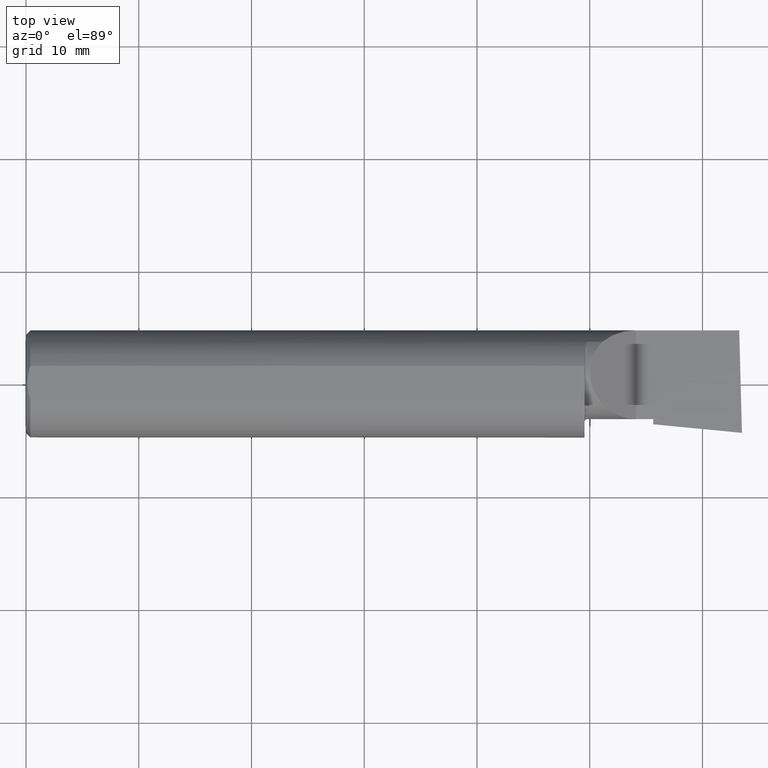
[diagram: clean part render]
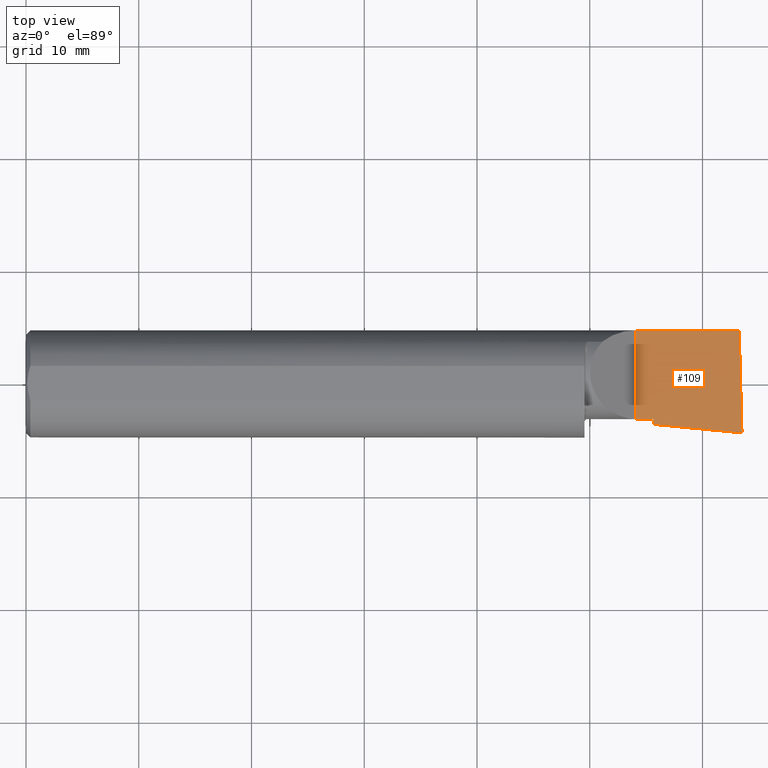
[diagram: same view with one face highlighted and labeled with its STEP entity id]
A machine part, top view. The second image highlights one B-rep face of the part: STEP entity #109.
In plain terms, the highlighted planar face has unit normal (-0, 0, -1).
Its self-contained STEP definition (entity closure, byte-faithful):
#11 = EDGE_CURVE ( 'NONE', #477, #620, #131, .T. ) ;
#21 = CARTESIAN_POINT ( 'NONE',  ( 2.129999999999999893, 0.1873499999999998222, 2.290089514405551589E-16 ) ) ;
#29 = LINE ( 'NONE', #451, #107 ) ;
#71 = DIRECTION ( 'NONE',  ( 0.9953961983671787417, -0.09584575252022417557, -1.557096167792191613E-16 ) ) ;
#75 = CARTESIAN_POINT ( 'NONE',  ( 2.500000000000000444, -0.1706500000000001627, 2.390366994456230070E-16 ) ) ;
#104 = VERTEX_POINT ( 'NONE', #21 ) ;
#106 = DIRECTION ( 'NONE',  ( -6.829619984160658816E-18, -1.000000000000000000, 1.075544278672776307E-33 ) ) ;
#107 = VECTOR ( 'NONE', #138, 39.37007874015748143 ) ;
#109 = ADVANCED_FACE ( 'NONE', ( #568 ), #239, .F. ) ;
#131 = LINE ( 'NONE', #339, #344 ) ;
#138 = DIRECTION ( 'NONE',  ( 1.000000000000000000, -6.829619984160658046E-18, 0.000000000000000000 ) ) ;
#149 = DIRECTION ( 'NONE',  ( -1.000000000000000000, 0.000000000000000000, 1.574823022609152926E-16 ) ) ;
#156 = AXIS2_PLACEMENT_3D ( 'NONE', #454, #184, #149 ) ;
#159 = CARTESIAN_POINT ( 'NONE',  ( 2.189999999999999947, -0.2500000000000000555, 2.195600133049002074E-16 ) ) ;
#184 = DIRECTION ( 'NONE',  ( -1.574823022609152926E-16, 0.000000000000000000, -1.000000000000000000 ) ) ;
#185 = EDGE_CURVE ( 'NONE', #362, #389, #29, .T. ) ;
#188 = CARTESIAN_POINT ( 'NONE',  ( 2.507570346891564217, -0.1713789414967140101, 1.695483039466191173E-16 ) ) ;
#212 = ORIENTED_EDGE ( 'NONE', *, *, #11, .F. ) ;
#219 = DIRECTION ( 'NONE',  ( 0.02677973311239316423, -0.9996413586354002678, -4.159071407961546428E-18 ) ) ;
#230 = CARTESIAN_POINT ( 'NONE',  ( 2.490409415965618933, 0.1873499999999998777, 1.722253598772638556E-16 ) ) ;
#239 = PLANE ( 'NONE',  #156 ) ;
#245 = DIRECTION ( 'NONE',  ( -0.000000000000000000, 1.000000000000000000, -0.000000000000000000 ) ) ;
#248 = VECTOR ( 'NONE', #71, 39.37007874015748143 ) ;
#291 = EDGE_LOOP ( 'NONE', ( #212, #479, #376, #559, #540, #370 ) ) ;
#294 = EDGE_CURVE ( 'NONE', #389, #647, #533, .T. ) ;
#296 = VECTOR ( 'NONE', #106, 39.37007874015748143 ) ;
#332 = CARTESIAN_POINT ( 'NONE',  ( 2.129999999999999893, -0.1226500000000000784, 2.290089514405551589E-16 ) ) ;
#339 = CARTESIAN_POINT ( 'NONE',  ( 2.502124209719675196, -0.2499430938217229448, 1.704059741668769989E-16 ) ) ;
#344 = VECTOR ( 'NONE', #219, 39.37007874015748143 ) ;
#362 = VERTEX_POINT ( 'NONE', #332 ) ;
#370 = ORIENTED_EDGE ( 'NONE', *, *, #609, .T. ) ;
#376 = ORIENTED_EDGE ( 'NONE', *, *, #507, .F. ) ;
#389 = VERTEX_POINT ( 'NONE', #538 ) ;
#406 = LINE ( 'NONE', #621, #657 ) ;
#451 = CARTESIAN_POINT ( 'NONE',  ( -1.093080678464824064E-18, -0.1226499999999999396, 5.644462552563044730E-16 ) ) ;
#454 = CARTESIAN_POINT ( 'NONE',  ( 2.500000000000000000, -0.2500000000000000555, 1.707404996040164512E-16 ) ) ;
#466 = CARTESIAN_POINT ( 'NONE',  ( 2.189999999999999947, -0.1408003950587630171, 2.192948291789086321E-16 ) ) ;
#477 = VERTEX_POINT ( 'NONE', #230 ) ;
#479 = ORIENTED_EDGE ( 'NONE', *, *, #577, .F. ) ;
#507 = EDGE_CURVE ( 'NONE', #362, #104, #566, .T. ) ;
#533 = LINE ( 'NONE', #159, #296 ) ;
#538 = CARTESIAN_POINT ( 'NONE',  ( 2.189999999999999947, -0.1226499999999999813, 0.000000000000000000 ) ) ;
#540 = ORIENTED_EDGE ( 'NONE', *, *, #294, .T. ) ;
#556 = LINE ( 'NONE', #188, #248 ) ;
#559 = ORIENTED_EDGE ( 'NONE', *, *, #185, .T. ) ;
#566 = LINE ( 'NONE', #618, #604 ) ;
#568 = FACE_OUTER_BOUND ( 'NONE', #291, .T. ) ;
#577 = EDGE_CURVE ( 'NONE', #104, #477, #406, .T. ) ;
#604 = VECTOR ( 'NONE', #245, 39.37007874015748143 ) ;
#609 = EDGE_CURVE ( 'NONE', #647, #620, #556, .T. ) ;
#618 = CARTESIAN_POINT ( 'NONE',  ( 2.129999999999999893, -0.2500000000000000555, 2.290089514405551589E-16 ) ) ;
#620 = VERTEX_POINT ( 'NONE', #75 ) ;
#621 = CARTESIAN_POINT ( 'NONE',  ( 8.889029578031509911E-32, 0.1873499999999999610, 5.644462552563044730E-16 ) ) ;
#624 = DIRECTION ( 'NONE',  ( 1.000000000000000000, 0.000000000000000000, 0.000000000000000000 ) ) ;
#647 = VERTEX_POINT ( 'NONE', #466 ) ;
#657 = VECTOR ( 'NONE', #624, 39.37007874015748143 ) ;